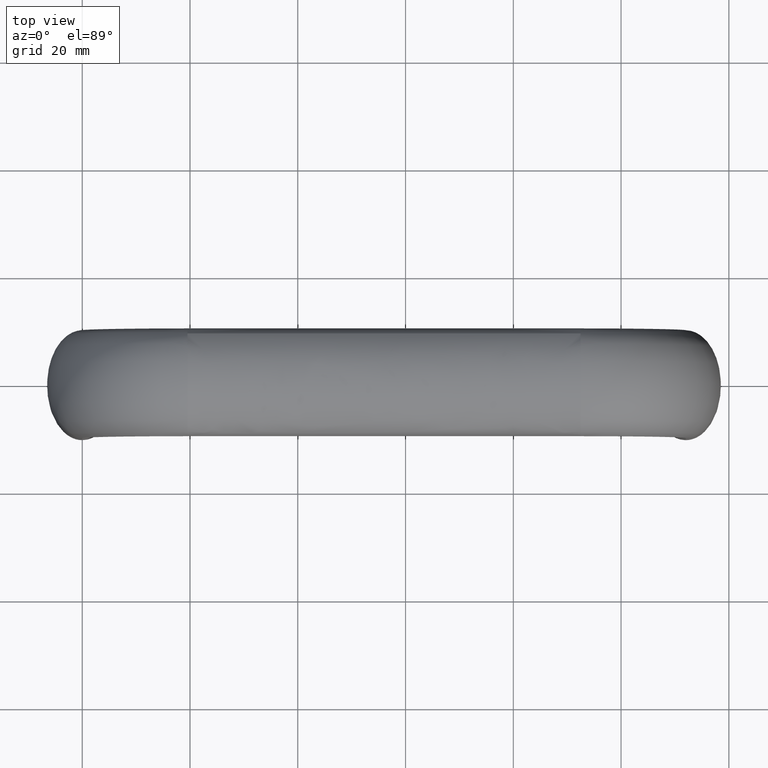
[diagram: clean part render]
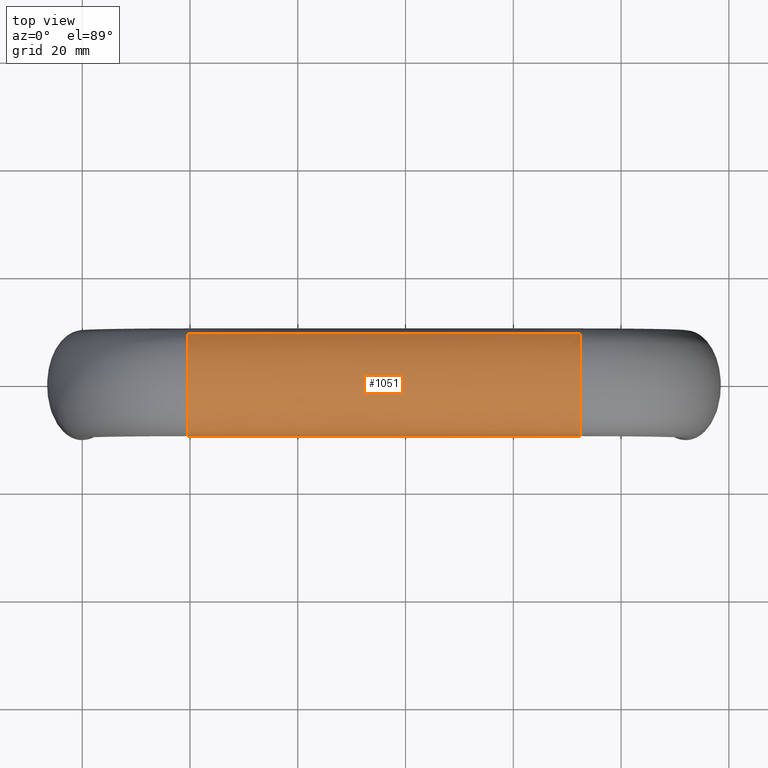
[diagram: same view with one face highlighted and labeled with its STEP entity id]
A machine part, top view. The second image highlights one B-rep face of the part: STEP entity #1051.
In plain terms, the highlighted face is a freeform B-spline surface patch.
Its self-contained STEP definition (entity closure, byte-faithful):
#774=CARTESIAN_POINT('',(92.500006999999997,9.039503756796908,45.265149685499040));
#775=VERTEX_POINT('',#774);
#783=CARTESIAN_POINT('',(92.500006999999997,-10.0,42.500007999999823));
#784=VERTEX_POINT('',#783);
#785=CARTESIAN_POINT('',(92.500006999999997,9.039503756796908,45.265149685499040));
#786=CARTESIAN_POINT('',(92.500006999999997,8.550381046640570,45.942850477867843));
#787=CARTESIAN_POINT('',(92.500006999999997,7.885596350436193,46.566758527641369));
#788=CARTESIAN_POINT('',(92.500006999999997,5.219866587632820,48.299482873463603));
#789=CARTESIAN_POINT('',(92.500006999999997,2.617993877991495,49.000007999999802));
#790=CARTESIAN_POINT('',(92.500006999999997,-2.617993877991495,49.000007999999802));
#791=CARTESIAN_POINT('',(92.500006999999997,-5.219866587632820,48.299482873463603));
#792=CARTESIAN_POINT('',(92.500006999999997,-8.922269036098131,45.892921281961087));
#793=CARTESIAN_POINT('',(92.500006999999997,-10.0,44.201704020694301));
#794=CARTESIAN_POINT('',(92.500006999999997,-10.0,42.500007999999823));
#795=B_SPLINE_CURVE_WITH_KNOTS('',3,(#785,#786,#787,#788,#789,#790,#791,#792,#793,#794),.UNSPECIFIED.,.F.,.U.,(4,2,2,2,4),(0.570000000006189,0.625000000000000,0.750000000000000,0.875000000000000,1.0),.UNSPECIFIED.);
#796=EDGE_CURVE('',#775,#784,#795,.T.);
#916=CARTESIAN_POINT('',(19.134821369207820,9.096864509780549,45.184292422864168));
#917=CARTESIAN_POINT('',(19.134821190449490,8.602094762146560,45.892560419937730));
#918=CARTESIAN_POINT('',(19.134821038622789,7.917438167972254,46.544725113166777));
#919=CARTESIAN_POINT('',(19.134820661903849,5.219866576463987,48.298197960543469));
#920=CARTESIAN_POINT('',(19.134820526563050,2.617993877991495,48.998742605319272));
#921=CARTESIAN_POINT('',(19.134820526563050,-2.617993877991495,48.998742605319272));
#922=CARTESIAN_POINT('',(19.134820661903849,-5.219866585683339,48.298197963901892));
#923=CARTESIAN_POINT('',(19.134821183395591,-8.954109973809260,45.870867372217333));
#924=CARTESIAN_POINT('',(19.134821612810470,-10.036828642468549,44.141967238039122));
#925=CARTESIAN_POINT('',(19.134822136240981,-10.0,42.410721032174962));
#926=CARTESIAN_POINT('',(22.298164567317801,9.096864509780549,45.198034287947387));
#927=CARTESIAN_POINT('',(22.298166177193860,8.602094762146558,45.906066687750020));
#928=CARTESIAN_POINT('',(22.298167544526880,7.917438167972254,46.558025631112052));
#929=CARTESIAN_POINT('',(22.298170937212380,5.219866576463986,48.310973912469983));
#930=CARTESIAN_POINT('',(22.298172156075360,2.617993877991495,49.011323293819082));
#931=CARTESIAN_POINT('',(22.298172156075360,-2.617993877991495,49.011323293819082));
#932=CARTESIAN_POINT('',(22.298170937212390,-5.219866585683338,48.310973915826757));
#933=CARTESIAN_POINT('',(22.298166240720430,-8.954109973809260,45.884369480425242));
#934=CARTESIAN_POINT('',(22.298162373461629,-10.036828642468549,44.156039264871218));
#935=CARTESIAN_POINT('',(22.298157659509389,-10.0,42.425443583701401));
#936=CARTESIAN_POINT('',(25.461605983712669,9.096864509780549,45.185674033233511));
#937=CARTESIAN_POINT('',(25.461605983734309,8.602094762146562,45.893918481573152));
#938=CARTESIAN_POINT('',(25.461605983752690,7.917438167972253,46.546062609415927));
#939=CARTESIAN_POINT('',(25.461605983798322,5.219866576463989,48.299483024667452));
#940=CARTESIAN_POINT('',(25.461605983814710,2.617993877991495,49.000008152211613));
#941=CARTESIAN_POINT('',(25.461605983814710,-2.617993877991495,49.000008152211613));
#942=CARTESIAN_POINT('',(25.461605983798322,-5.219866585683341,48.299483028025712));
#943=CARTESIAN_POINT('',(25.461605983735161,-8.954109973809260,45.872225018086340));
#944=CARTESIAN_POINT('',(25.461605983683171,-10.036828642468549,44.143381849177793));
#945=CARTESIAN_POINT('',(25.461605983619769,-10.0,42.412200665429111));
#946=CARTESIAN_POINT('',(46.875002624970271,9.096864509780549,45.185673866188473));
#947=CARTESIAN_POINT('',(46.875002624970172,8.602094762146555,45.893918317392853));
#948=CARTESIAN_POINT('',(46.875002624970072,7.917438167972255,46.546062447737476));
#949=CARTESIAN_POINT('',(46.875002624969859,5.219866576463986,48.299482869367537));
#950=CARTESIAN_POINT('',(46.875002624969788,2.617993877991494,49.000007999285998));
#951=CARTESIAN_POINT('',(46.875002624969788,-2.617993877991494,49.000007999285998));
#952=CARTESIAN_POINT('',(46.875002624969859,-5.219866585683338,48.299482872725797));
#953=CARTESIAN_POINT('',(46.875002624970172,-8.954109973809251,45.872224853956652));
#954=CARTESIAN_POINT('',(46.875002624970392,-10.036828642468540,44.143381678118097));
#955=CARTESIAN_POINT('',(46.875002624970698,-10.0,42.412200486459277));
#956=CARTESIAN_POINT('',(65.125004375053862,9.096864509780554,45.185673866188232));
#957=CARTESIAN_POINT('',(65.125004375053962,8.602094762146560,45.893918317392618));
#958=CARTESIAN_POINT('',(65.125004375054061,7.917438167972259,46.546062447737242));
#959=CARTESIAN_POINT('',(65.125004375054274,5.219866576463992,48.299482869367260));
#960=CARTESIAN_POINT('',(65.125004375054345,2.617993877991495,49.000007999285771));
#961=CARTESIAN_POINT('',(65.125004375054345,-2.617993877991495,49.000007999285771));
#962=CARTESIAN_POINT('',(65.125004375054274,-5.219866585683343,48.299482872725520));
#963=CARTESIAN_POINT('',(65.125004375053976,-8.954109973809262,45.872224853956403));
#964=CARTESIAN_POINT('',(65.125004375053734,-10.036828642468549,44.143381678117841));
#965=CARTESIAN_POINT('',(65.125004375053436,-10.0,42.412200486459056));
#966=CARTESIAN_POINT('',(86.538401016235156,9.096864509780545,45.185674033292052));
#967=CARTESIAN_POINT('',(86.538401016213513,8.602094762146562,45.893918481631637));
#968=CARTESIAN_POINT('',(86.538401016195095,7.917438167972253,46.546062609474440));
#969=CARTESIAN_POINT('',(86.538401016149436,5.219866576463986,48.299483024725973));
#970=CARTESIAN_POINT('',(86.538401016133051,2.617993877991495,49.000008152270127));
#971=CARTESIAN_POINT('',(86.538401016133051,-2.617993877991495,49.000008152270127));
#972=CARTESIAN_POINT('',(86.538401016149436,-5.219866585683338,48.299483028084232));
#973=CARTESIAN_POINT('',(86.538401016212646,-8.954109973809260,45.872225018144867));
#974=CARTESIAN_POINT('',(86.538401016264658,-10.036828642468549,44.143381849236313));
#975=CARTESIAN_POINT('',(86.538401016328081,-10.0,42.412200665487632));
#976=CARTESIAN_POINT('',(89.701842490868628,9.096864509780549,45.198042939283397));
#977=CARTESIAN_POINT('',(89.701840879994720,8.602094762146560,45.906075339093597));
#978=CARTESIAN_POINT('',(89.701839511790268,7.917438167972254,46.558034282462032));
#979=CARTESIAN_POINT('',(89.701836116883072,5.219866576463987,48.310982563835957));
#980=CARTESIAN_POINT('',(89.701834897193123,2.617993877991495,49.011331945191017));
#981=CARTESIAN_POINT('',(89.701834897193123,-2.617993877991495,49.011331945191017));
#982=CARTESIAN_POINT('',(89.701836116883058,-5.219866585683339,48.310982567192752));
#983=CARTESIAN_POINT('',(89.701840816450513,-8.954109973809260,45.884378131769182));
#984=CARTESIAN_POINT('',(89.701844686123124,-10.036828642468549,44.156047916196933));
#985=CARTESIAN_POINT('',(89.701849402830632,-10.0,42.425452235004961));
#986=CARTESIAN_POINT('',(92.865185624231458,9.096864509780549,45.184300422888718));
#987=CARTESIAN_POINT('',(92.865185803100587,8.602094762146560,45.892568419961442));
#988=CARTESIAN_POINT('',(92.865185955024060,7.917438167972254,46.544733113189771));
#989=CARTESIAN_POINT('',(92.865186331989690,5.219866576463987,48.298205960564758));
#990=CARTESIAN_POINT('',(92.865186467422319,2.617993877991495,48.998750605339772));
#991=CARTESIAN_POINT('',(92.865186467422319,-2.617993877991495,48.998750605339772));
#992=CARTESIAN_POINT('',(92.865186331989690,-5.219866585683339,48.298205963923181));
#993=CARTESIAN_POINT('',(92.865185810156433,-8.954109973809260,45.870875372240960));
#994=CARTESIAN_POINT('',(92.865185380473548,-10.036828642468549,44.141975238064852));
#995=CARTESIAN_POINT('',(92.865184856737088,-10.0,42.410729032203157));
#996=B_SPLINE_SURFACE_WITH_KNOTS('',3,3,((#916,#926,#936,#946,#956,#966,#976,#986),(#917,#927,#937,#947,#957,#967,#977,#987),(#918,#928,#938,#948,#958,#968,#978,#988),(#919,#929,#939,#949,#959,#969,#979,#989),(#920,#930,#940,#950,#960,#970,#980,#990),(#921,#931,#941,#951,#961,#971,#981,#991),(#922,#932,#942,#952,#962,#972,#982,#992),(#923,#933,#943,#953,#963,#973,#983,#993),(#924,#934,#944,#954,#964,#974,#984,#994),(#925,#935,#945,#955,#965,#975,#985,#995)),.UNSPECIFIED.,.F.,.F.,.U.,(4,2,2,2,4),(4,2,2,4),(0.0,3.517526942017531,11.211155430590020,18.904783919162512,26.730742814780658),(0.0,9.490244767294968,64.240596714146008,73.730841481347881),.UNSPECIFIED.);
#997=ORIENTED_EDGE('',*,*,#796,.F.);
#998=CARTESIAN_POINT('',(19.500000000000000,9.039503756796908,45.265141685499209));
#999=VERTEX_POINT('',#998);
#1000=CARTESIAN_POINT('',(19.500000000000000,9.039503756796908,45.265141685499209));
#1001=CARTESIAN_POINT('',(22.541624094407361,9.039503756879462,45.276559360533618));
#1002=CARTESIAN_POINT('',(25.583333916656851,9.039503756879462,45.265149685384657));
#1003=CARTESIAN_POINT('',(31.666667833343201,9.039503756879462,45.265149685384657));
#1004=CARTESIAN_POINT('',(34.708334791656803,9.039503756879462,45.265149685384657));
#1005=CARTESIAN_POINT('',(43.833335666686352,9.039503756879462,45.265149685384657));
#1006=CARTESIAN_POINT('',(49.916669583365191,9.039503756879462,45.265149685384657));
#1007=CARTESIAN_POINT('',(62.083337416634912,9.039503756879462,45.265149685384657));
#1008=CARTESIAN_POINT('',(68.166671333374595,9.039503756879462,45.265149685384657));
#1009=CARTESIAN_POINT('',(77.291672208312789,9.039503756879462,45.265149685384657));
#1010=CARTESIAN_POINT('',(80.333339166708299,9.039503756879462,45.265149685384657));
#1011=CARTESIAN_POINT('',(86.416673083291599,9.039503756879462,45.265149685384657));
#1012=CARTESIAN_POINT('',(89.458382959359227,9.039503756879462,45.276567360331192));
#1013=CARTESIAN_POINT('',(92.500006999999997,9.039503756796908,45.265149685499040));
#1014=B_SPLINE_CURVE_WITH_KNOTS('',3,(#1000,#1001,#1002,#1003,#1004,#1005,#1006,#1007,#1008,#1009,#1010,#1011,#1012,#1013),.UNSPECIFIED.,.F.,.U.,(4,2,2,2,2,2,4),(0.297515876464408,0.348136907348306,0.398757938232204,0.500000000000000,0.601242061767796,0.651863092651694,0.702484123535592),.UNSPECIFIED.);
#1015=EDGE_CURVE('',#999,#775,#1014,.T.);
#1016=ORIENTED_EDGE('',*,*,#1015,.F.);
#1017=CARTESIAN_POINT('',(19.500000000000000,-10.0,42.499999999999979));
#1018=VERTEX_POINT('',#1017);
#1019=CARTESIAN_POINT('',(19.500000000000000,9.039503756796908,45.265141685499209));
#1020=CARTESIAN_POINT('',(19.500000000000000,8.550381046640570,45.942842477868020));
#1021=CARTESIAN_POINT('',(19.500000000000000,7.885596350436193,46.566750527641553));
#1022=CARTESIAN_POINT('',(19.500000000000000,5.219866587632820,48.299474873463701));
#1023=CARTESIAN_POINT('',(19.500000000000000,2.617993877991495,49.0));
#1024=CARTESIAN_POINT('',(19.500000000000000,-2.617993877991495,49.0));
#1025=CARTESIAN_POINT('',(19.500000000000000,-5.219866587632820,48.299474873463701));
#1026=CARTESIAN_POINT('',(19.500000000000000,-8.922269036098131,45.892913281961299));
#1027=CARTESIAN_POINT('',(19.500000000000000,-10.0,44.201696020694449));
#1028=CARTESIAN_POINT('',(19.500000000000000,-10.0,42.499999999999979));
#1029=B_SPLINE_CURVE_WITH_KNOTS('',3,(#1019,#1020,#1021,#1022,#1023,#1024,#1025,#1026,#1027,#1028),.UNSPECIFIED.,.F.,.U.,(4,2,2,2,4),(0.570000000006189,0.625000000000000,0.750000000000000,0.875000000000000,1.0),.UNSPECIFIED.);
#1030=EDGE_CURVE('',#999,#1018,#1029,.T.);
#1031=ORIENTED_EDGE('',*,*,#1030,.T.);
#1032=CARTESIAN_POINT('',(19.500000000000000,-10.0,42.499999999999979));
#1033=CARTESIAN_POINT('',(22.541617759291050,-10.0,42.512228599741249));
#1034=CARTESIAN_POINT('',(25.583333916656851,-10.0,42.500007999999823));
#1035=CARTESIAN_POINT('',(31.666667833343201,-10.0,42.500007999999823));
#1036=CARTESIAN_POINT('',(34.708334791656803,-10.0,42.500007999999823));
#1037=CARTESIAN_POINT('',(43.833335666686352,-10.0,42.500007999999823));
#1038=CARTESIAN_POINT('',(49.916669583365191,-10.0,42.500007999999823));
#1039=CARTESIAN_POINT('',(62.083337416634912,-10.0,42.500007999999823));
#1040=CARTESIAN_POINT('',(68.166671333374595,-10.0,42.500007999999823));
#1041=CARTESIAN_POINT('',(77.291672208312789,-10.0,42.500007999999823));
#1042=CARTESIAN_POINT('',(80.333339166708299,-10.0,42.500007999999823));
#1043=CARTESIAN_POINT('',(86.416673083291599,-10.0,42.500007999999823));
#1044=CARTESIAN_POINT('',(89.458389298291507,-10.0,42.512236599509073));
#1045=CARTESIAN_POINT('',(92.500006999999997,-10.0,42.500007999999823));
#1046=B_SPLINE_CURVE_WITH_KNOTS('',3,(#1032,#1033,#1034,#1035,#1036,#1037,#1038,#1039,#1040,#1041,#1042,#1043,#1044,#1045),.UNSPECIFIED.,.F.,.U.,(4,2,2,2,2,2,4),(0.297515876464408,0.348136907348306,0.398757938232204,0.500000000000000,0.601242061767796,0.651863092651694,0.702484123535592),.UNSPECIFIED.);
#1047=EDGE_CURVE('',#1018,#784,#1046,.T.);
#1048=ORIENTED_EDGE('',*,*,#1047,.T.);
#1049=EDGE_LOOP('',(#997,#1016,#1031,#1048));
#1050=FACE_OUTER_BOUND('',#1049,.T.);
#1051=ADVANCED_FACE('',(#1050),#996,.T.);